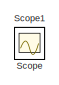
[diagram: root canvas - part 1/2, top left region]
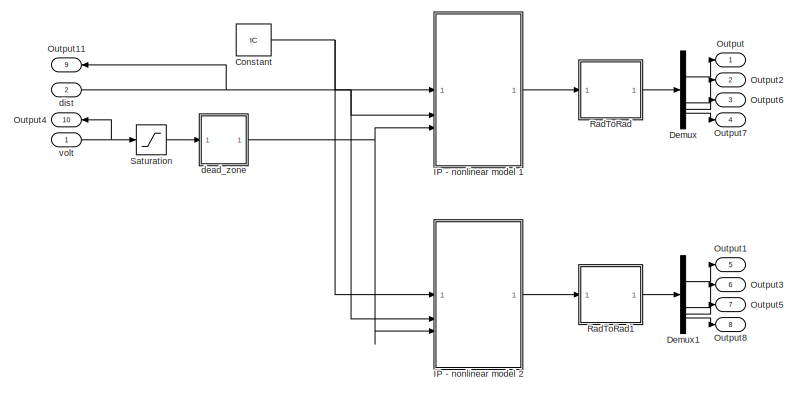
[diagram: root canvas - part 2/2, bottom right region]
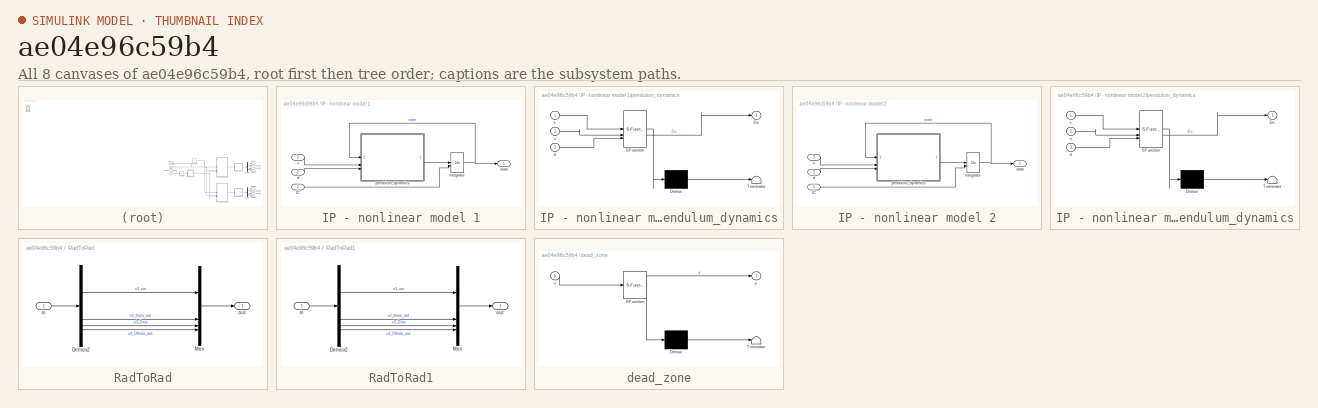
[diagram: thumbnail index - all 8 canvases of the model, root first then tree order]
MODEL slx_ae04e96c59b4
KIND model
CONFIG AbsTol = auto
CONFIG EnableMultiTasking = off
CONFIG FixedStep = dt
CONFIG MaxStep = 0.001
CONFIG MinStep = auto
CONFIG RelTol = 1e-3
CONFIG SampleTimeConstraint = Unconstrained
CONFIG SolverName = ode4
CONFIG StartTime = 0.0
CONFIG StopTime = end_time
BLOCK [Constant] Constant
  Value = IC
  VectorParams1D = off
BLOCK [Demux] Demux
BLOCK [Demux] Demux1
BLOCK [SubSystem] IP - nonlinear model 1
  Description = Nonlinear model of inverted pendulum
BLOCK [Inport] IP - nonlinear model 1/IC
BLOCK [Integrator] IP - nonlinear model 1/Integrator
  InitialConditionSource = external
BLOCK [Inport] IP - nonlinear model 1/d
  Port = 2
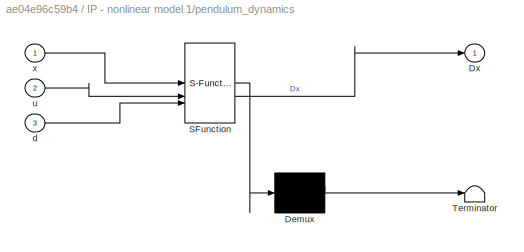
BLOCK [SubSystem] IP - nonlinear model 1/pendulum_dynamics
  ErrorFcn = Stateflow.Translate.translate
  PermitHierarchicalResolution = ExplicitOnly
  SFBlockType = MATLAB Function
  TreatAsAtomicUnit = on
BLOCK [Demux] IP - nonlinear model 1/pendulum_dynamics/ Demux 
  Outputs = 1
BLOCK [S-Function] IP - nonlinear model 1/pendulum_dynamics/ SFunction 
  EnableBusSupport = on
  FunctionName = sf_sfun
  Parameters = params_strib
  PortCounts = [3 2]
  SFcnIsStateOwnerBlock = off
  SFunctionDeploymentMode = off
  Tag = Stateflow S-Function 1
BLOCK [Terminator] IP - nonlinear model 1/pendulum_dynamics/ Terminator 
BLOCK [Outport] IP - nonlinear model 1/pendulum_dynamics/Dx
BLOCK [Inport] IP - nonlinear model 1/pendulum_dynamics/d
  Port = 3
BLOCK [Inport] IP - nonlinear model 1/pendulum_dynamics/u
  Port = 2
BLOCK [Inport] IP - nonlinear model 1/pendulum_dynamics/x
BLOCK [Outport] IP - nonlinear model 1/state
BLOCK [Inport] IP - nonlinear model 1/v
  Port = 3
BLOCK [SubSystem] IP - nonlinear model 2
  Description = Nonlinear model of inverted pendulum
BLOCK [Inport] IP - nonlinear model 2/IC
BLOCK [Integrator] IP - nonlinear model 2/Integrator
  InitialConditionSource = external
BLOCK [Inport] IP - nonlinear model 2/d
  Port = 2
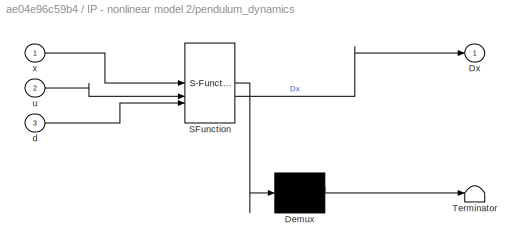
BLOCK [SubSystem] IP - nonlinear model 2/pendulum_dynamics
  ErrorFcn = Stateflow.Translate.translate
  PermitHierarchicalResolution = ExplicitOnly
  SFBlockType = MATLAB Function
  TreatAsAtomicUnit = on
BLOCK [Demux] IP - nonlinear model 2/pendulum_dynamics/ Demux 
  Outputs = 1
BLOCK [S-Function] IP - nonlinear model 2/pendulum_dynamics/ SFunction 
  EnableBusSupport = on
  FunctionName = sf_sfun
  Parameters = params_vis
  PortCounts = [3 2]
  SFcnIsStateOwnerBlock = off
  SFunctionDeploymentMode = off
  Tag = Stateflow S-Function 3
BLOCK [Terminator] IP - nonlinear model 2/pendulum_dynamics/ Terminator 
BLOCK [Outport] IP - nonlinear model 2/pendulum_dynamics/Dx
BLOCK [Inport] IP - nonlinear model 2/pendulum_dynamics/d
  Port = 3
BLOCK [Inport] IP - nonlinear model 2/pendulum_dynamics/u
  Port = 2
BLOCK [Inport] IP - nonlinear model 2/pendulum_dynamics/x
BLOCK [Outport] IP - nonlinear model 2/state
BLOCK [Inport] IP - nonlinear model 2/v
  Port = 3
BLOCK [Outport] Output
  SignalName = xw_str
BLOCK [Outport] Output1
  Port = 5
  SignalName = xw_vis
BLOCK [Outport] Output11
  NameLocation = top
  Port = 9
  SignalName = dist
BLOCK [Outport] Output2
  Port = 2
  SignalName = the_str
BLOCK [Outport] Output3
  Port = 6
  SignalName = the_vis
BLOCK [Outport] Output4
  NameLocation = top
  Port = 10
  SignalName = volt
BLOCK [Outport] Output5
  Port = 7
  SignalName = Dxw_vis
BLOCK [Outport] Output6
  Port = 3
  SignalName = Dxw_str
BLOCK [Outport] Output7
  Port = 4
  SignalName = Dthe_str
BLOCK [Outport] Output8
  Port = 8
  SignalName = Dthe_vis
BLOCK [SubSystem] RadToRad
BLOCK [Demux] RadToRad/Demux2
BLOCK [Mux] RadToRad/Mux
  DisplayOption = bar
BLOCK [Inport] RadToRad/in
BLOCK [Outport] RadToRad/out
BLOCK [SubSystem] RadToRad1
BLOCK [Demux] RadToRad1/Demux2
BLOCK [Mux] RadToRad1/Mux
  DisplayOption = bar
BLOCK [Inport] RadToRad1/in
BLOCK [Outport] RadToRad1/out
BLOCK [Saturate] Saturation
  LowerLimit = -12
  UpperLimit = 12
BLOCK [Scope] Scope
  Floating = off
  IOType = viewer
  NumInputPorts = 1
  ScopeSpecificationString = Simulink.scopes.TimeScopeBlockCfg('CurrentConfiguration', extmgr.ConfigurationSet(extmgr.Configuration('Core','General UI',true),extmgr.Configuration('Core','Source UI',true),extmgr.Configuration('Sources','WiredSimulink',true),extmgr.Configuration('Visuals','Time Domain',true,'SerializedDisplays',{struct('MinYLimReal','-1.11209','MaxYLimReal','1.88409','YLabelReal','','MinYLimMag','0.00000','MaxY...<+1433ch>
BLOCK [Scope] Scope1
  Floating = off
  IOType = viewer
  NumInputPorts = 1
  ScopeSpecificationString = Simulink.scopes.TimeScopeBlockCfg('CurrentConfiguration', extmgr.ConfigurationSet(extmgr.Configuration('Core','General UI',true),extmgr.Configuration('Core','Source UI',true),extmgr.Configuration('Sources','WiredSimulink',true,'DataLoggingVariableName','ScopeData1'),extmgr.Configuration('Visuals','Time Domain',true,'SerializedDisplays',{struct('MinYLimReal','-0.01388','MaxYLimReal','0.12494','YLab...<+1404ch>
BLOCK [SubSystem] dead_zone
  ErrorFcn = Stateflow.Translate.translate
  LibrarySourceBlock = simulink/User-Defined\nFunctions/MATLAB Function
  PermitHierarchicalResolution = ExplicitOnly
  SFBlockType = MATLAB Function
  TreatAsAtomicUnit = on
BLOCK [Demux] dead_zone/ Demux 
  Outputs = 1
BLOCK [S-Function] dead_zone/ SFunction 
  EnableBusSupport = on
  FunctionName = sf_sfun
  PortCounts = [1 2]
  SFcnIsStateOwnerBlock = off
  SFunctionDeploymentMode = off
  Tag = Stateflow S-Function 2
BLOCK [Terminator] dead_zone/ Terminator 
BLOCK [Inport] dead_zone/u
BLOCK [Outport] dead_zone/y
BLOCK [Inport] dist
  NameLocation = left
  Port = 2
BLOCK [Inport] volt
  NameLocation = left
NET Constant:1 -> IP - nonlinear model 1:1, IP - nonlinear model 2:1
LINE Demux1:1 -> Output1:1
LINE Demux1:2 -> Output3:1
LINE Demux1:3 -> Output5:1
LINE Demux1:4 -> Output8:1
LINE Demux:1 -> Output:1
LINE Demux:2 -> Output2:1
LINE Demux:3 -> Output6:1
LINE Demux:4 -> Output7:1
LINE IP - nonlinear model 1/IC:1 -> IP - nonlinear model 1/Integrator:2
NET IP - nonlinear model 1/Integrator:1 -> IP - nonlinear model 1/pendulum_dynamics:1, IP - nonlinear model 1/state:1
LINE IP - nonlinear model 1/d:1 -> IP - nonlinear model 1/pendulum_dynamics:3
LINE IP - nonlinear model 1/pendulum_dynamics:1 -> IP - nonlinear model 1/Integrator:1
LINE IP - nonlinear model 1/v:1 -> IP - nonlinear model 1/pendulum_dynamics:2
LINE IP - nonlinear model 1:1 -> RadToRad:1
LINE IP - nonlinear model 2/IC:1 -> IP - nonlinear model 2/Integrator:2
NET IP - nonlinear model 2/Integrator:1 -> IP - nonlinear model 2/pendulum_dynamics:1, IP - nonlinear model 2/state:1
LINE IP - nonlinear model 2/d:1 -> IP - nonlinear model 2/pendulum_dynamics:3
LINE IP - nonlinear model 2/pendulum_dynamics:1 -> IP - nonlinear model 2/Integrator:1
LINE IP - nonlinear model 2/v:1 -> IP - nonlinear model 2/pendulum_dynamics:2
LINE IP - nonlinear model 2:1 -> RadToRad1:1
LINE RadToRad/Demux2:1 -> RadToRad/Mux:1
LINE RadToRad/Demux2:2 -> RadToRad/Mux:2
LINE RadToRad/Demux2:3 -> RadToRad/Mux:3
LINE RadToRad/Demux2:4 -> RadToRad/Mux:4
LINE RadToRad/Mux:1 -> RadToRad/out:1
LINE RadToRad/in:1 -> RadToRad/Demux2:1
LINE RadToRad1/Demux2:1 -> RadToRad1/Mux:1
LINE RadToRad1/Demux2:2 -> RadToRad1/Mux:2
LINE RadToRad1/Demux2:3 -> RadToRad1/Mux:3
LINE RadToRad1/Demux2:4 -> RadToRad1/Mux:4
LINE RadToRad1/Mux:1 -> RadToRad1/out:1
LINE RadToRad1/in:1 -> RadToRad1/Demux2:1
LINE RadToRad1:1 -> Demux1:1
LINE RadToRad:1 -> Demux:1
LINE Saturation:1 -> dead_zone:1
NET dead_zone:1 -> IP - nonlinear model 1:3, IP - nonlinear model 2:3
NET dist:1 -> IP - nonlinear model 1:2, IP - nonlinear model 2:2, Output11:1
NET volt:1 -> Output4:1, Saturation:1
note: NET lines group one-source signal fan-out (src -> all destinations, sorted); 1:1 wires keep LINE
CHART IP - nonlinear model 1/pendulum_dynamics states=1 transitions=1
  STATE_LABEL 'eML_blk_kernel()'
  STATE_LABEL 'SCRIPT:\nfunction Dx = dynamika_wahadla(x, u, d, params_strib)\n% x : stan\n% u : input - napięcie\n%\n% params scope: "parameters"\n%\n\n% State, function input: x = [x Dx theta Dtheta]\'\n% x1 = x(1);\nx2 = x(2);\nx3 = x(3);\nx4 = x(4);\n\nparams_strib = num2cell(params_strib);\n[M, mp, mc, Lp, alpha_dcm, B, gamma_stri, miu_c, miu_s, vs] = params_strib{:};\n\ng = 9.8145;\nLc = 2*Lp;\nmr = mc + mp;\nMt = mr + M;\nL = ...<+477ch>'
CHART dead_zone states=1 transitions=1
  STATE_LABEL 'eML_blk_kernel()'
  STATE_LABEL 'SCRIPT:\nfunction y = fcn(u)\n    if (abs(u) < 1)\n        y = 0;\n    else\n        y = u;\n    end\nend'
CHART IP - nonlinear model 2/pendulum_dynamics states=1 transitions=1
  STATE_LABEL 'eML_blk_kernel()'
  STATE_LABEL 'SCRIPT:\nfunction Dx = dynamika_wahadla(x, u, d, params_vis)\n% x : stan\n% u : input - napięcie\n%\n% params scope: "parameters"\n%\n\n% State, function input: x = [x Dx theta Dtheta]\'\n% x1 = x(1);\nx2 = x(2);\nx3 = x(3);\nx4 = x(4);\n\nparams_vis = num2cell(params_vis);\n[M, mp, mc, Lp, Bb, gamma_stri, alpha_dcm] = params_vis{:};\n\ng = 9.8145;\nLc = 2*Lp;\nmr = mc + mp;\nMt = mr + M;\nL = (Lc*mc + Lp*mp) / mr;\nJcm...<+353ch>'
CHART  states=0 transitions=0
CHART  states=0 transitions=0
CHART  states=0 transitions=0
